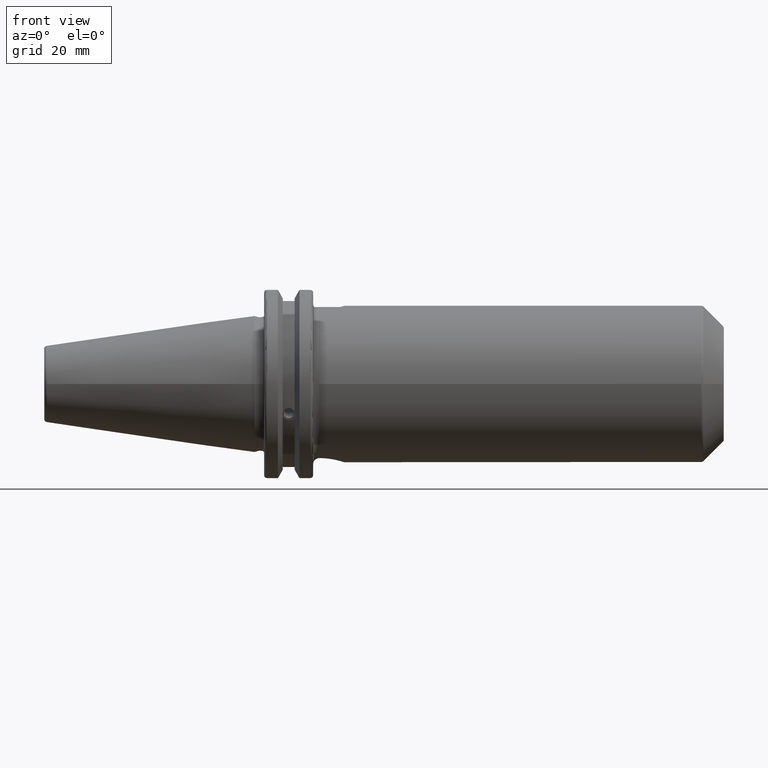
[diagram: clean part render]
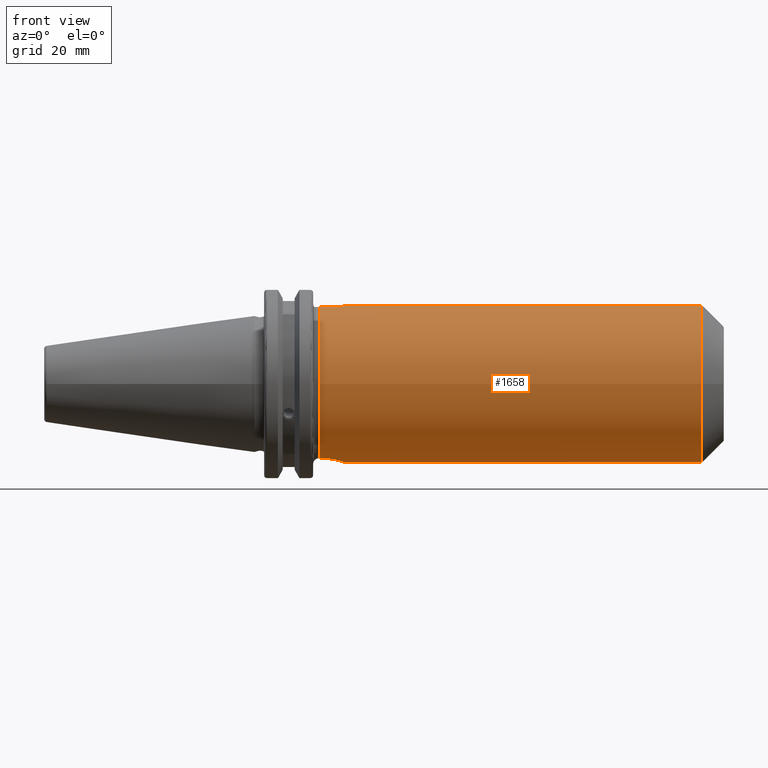
[diagram: same view with one face highlighted and labeled with its STEP entity id]
A machine part, front view. The second image highlights one B-rep face of the part: STEP entity #1658.
In plain terms, the highlighted cylindrical surface (bore or boss wall) has radius 25.4 mm, axis along (1, 0, 0).
Its self-contained STEP definition (entity closure, byte-faithful):
#45=FACE_BOUND('',#253,.T.);
#46=FACE_BOUND('',#254,.T.);
#119=CYLINDRICAL_SURFACE('',#1783,25.4);
#156=FACE_OUTER_BOUND('',#252,.T.);
#252=EDGE_LOOP('',(#1158,#1159,#1160,#1161,#1162,#1163,#1164,#1165,#1166,
#1167,#1168,#1169,#1170));
#253=EDGE_LOOP('',(#1171,#1172));
#254=EDGE_LOOP('',(#1173,#1174));
#360=CIRCLE('',#1784,25.4);
#361=CIRCLE('',#1785,25.4);
#362=CIRCLE('',#1786,25.4);
#363=CIRCLE('',#1787,25.4);
#364=CIRCLE('',#1788,25.4);
#452=LINE('',#2678,#546);
#453=LINE('',#2681,#547);
#454=LINE('',#2683,#548);
#455=LINE('',#2687,#549);
#456=LINE('',#2700,#550);
#546=VECTOR('',#2016,25.4);
#547=VECTOR('',#2019,10.);
#548=VECTOR('',#2020,10.);
#549=VECTOR('',#2023,10.);
#550=VECTOR('',#2024,10.);
#622=B_SPLINE_CURVE_WITH_KNOTS('',3,(#2442,#2443,#2444,#2445,#2446,#2447,
#2448,#2449,#2450,#2451,#2452,#2453,#2454,#2455,#2456,#2457,#2458,#2459),
 .UNSPECIFIED.,.F.,.F.,(4,2,2,2,2,2,2,2,4),(1.52618984305702,1.91611919862411,
2.3060485541912,2.67921412015262,3.05237968611404,3.42554525207547,3.79871081803689,
4.18864017360398,4.57856952917107),.UNSPECIFIED.);
#623=B_SPLINE_CURVE_WITH_KNOTS('',3,(#2463,#2464,#2465,#2466,#2467,#2468,
#2469,#2470,#2471,#2472,#2473,#2474,#2475,#2476,#2477,#2478,#2479,#2480,
#2481),.UNSPECIFIED.,.F.,.F.,(4,2,2,2,3,2,2,2,4),(4.57856952917107,4.96849888473815,
5.35842824030524,5.73159380626666,6.10475937222809,6.47792493818951,6.85109050415093,
7.24101985971802,7.63094921528511),.UNSPECIFIED.);
#626=B_SPLINE_CURVE_WITH_KNOTS('',3,(#2525,#2526,#2527,#2528,#2529,#2530,
#2531,#2532,#2533,#2534,#2535,#2536,#2537,#2538,#2539,#2540,#2541,#2542),
 .UNSPECIFIED.,.F.,.F.,(4,2,2,2,2,2,2,2,4),(1.52618984305702,1.91611919862411,
2.3060485541912,2.67921412015262,3.05237968611404,3.42554525207547,3.79871081803689,
4.18864017360398,4.57856952917107),.UNSPECIFIED.);
#627=B_SPLINE_CURVE_WITH_KNOTS('',3,(#2546,#2547,#2548,#2549,#2550,#2551,
#2552,#2553,#2554,#2555,#2556,#2557,#2558,#2559,#2560,#2561,#2562,#2563,
#2564),.UNSPECIFIED.,.F.,.F.,(4,2,2,2,3,2,2,2,4),(4.57856952917107,4.96849888473815,
5.35842824030524,5.73159380626666,6.10475937222809,6.47792493818951,6.85109050415093,
7.24101985971802,7.63094921528511),.UNSPECIFIED.);
#631=B_SPLINE_CURVE_WITH_KNOTS('',3,(#2613,#2614,#2615,#2616,#2617,#2618,
#2619,#2620,#2621,#2622,#2623,#2624,#2625,#2626,#2627,#2628,#2629,#2630),
 .UNSPECIFIED.,.F.,.F.,(4,2,2,2,2,2,2,2,4),(-2.48737209959745,-2.17638789866585,
-1.86540369773425,-1.55454487376649,-1.24368604979872,-0.932827225830959,
-0.621968401863195,-0.310984200931598,0.),.UNSPECIFIED.);
#632=B_SPLINE_CURVE_WITH_KNOTS('',3,(#2689,#2690,#2691,#2692,#2693,#2694,
#2695,#2696,#2697,#2698),.UNSPECIFIED.,.F.,.F.,(4,2,2,2,4),(3.27471279856147,
3.4201993254284,3.73105814939617,4.04191697336393,4.18740350023087),
 .UNSPECIFIED.);
#675=VERTEX_POINT('',#2440);
#676=VERTEX_POINT('',#2441);
#680=VERTEX_POINT('',#2523);
#681=VERTEX_POINT('',#2524);
#685=VERTEX_POINT('',#2606);
#687=VERTEX_POINT('',#2612);
#706=VERTEX_POINT('',#2674);
#707=VERTEX_POINT('',#2675);
#708=VERTEX_POINT('',#2677);
#709=VERTEX_POINT('',#2679);
#710=VERTEX_POINT('',#2682);
#711=VERTEX_POINT('',#2684);
#712=VERTEX_POINT('',#2686);
#713=VERTEX_POINT('',#2688);
#714=VERTEX_POINT('',#2699);
#851=EDGE_CURVE('',#675,#676,#622,.T.);
#854=EDGE_CURVE('',#676,#675,#623,.T.);
#858=EDGE_CURVE('',#680,#681,#626,.T.);
#861=EDGE_CURVE('',#681,#680,#627,.T.);
#866=EDGE_CURVE('',#687,#685,#631,.T.);
#888=EDGE_CURVE('',#706,#707,#360,.T.);
#889=EDGE_CURVE('',#706,#708,#452,.T.);
#890=EDGE_CURVE('',#709,#708,#361,.T.);
#891=EDGE_CURVE('',#709,#687,#453,.T.);
#892=EDGE_CURVE('',#685,#710,#454,.T.);
#893=EDGE_CURVE('',#711,#710,#362,.T.);
#894=EDGE_CURVE('',#711,#712,#455,.T.);
#895=EDGE_CURVE('',#712,#713,#632,.T.);
#896=EDGE_CURVE('',#713,#714,#456,.T.);
#897=EDGE_CURVE('',#708,#714,#363,.T.);
#898=EDGE_CURVE('',#707,#706,#364,.T.);
#1158=ORIENTED_EDGE('',*,*,#888,.F.);
#1159=ORIENTED_EDGE('',*,*,#889,.T.);
#1160=ORIENTED_EDGE('',*,*,#890,.F.);
#1161=ORIENTED_EDGE('',*,*,#891,.T.);
#1162=ORIENTED_EDGE('',*,*,#866,.T.);
#1163=ORIENTED_EDGE('',*,*,#892,.T.);
#1164=ORIENTED_EDGE('',*,*,#893,.F.);
#1165=ORIENTED_EDGE('',*,*,#894,.T.);
#1166=ORIENTED_EDGE('',*,*,#895,.T.);
#1167=ORIENTED_EDGE('',*,*,#896,.T.);
#1168=ORIENTED_EDGE('',*,*,#897,.F.);
#1169=ORIENTED_EDGE('',*,*,#889,.F.);
#1170=ORIENTED_EDGE('',*,*,#898,.F.);
#1171=ORIENTED_EDGE('',*,*,#851,.T.);
#1172=ORIENTED_EDGE('',*,*,#854,.T.);
#1173=ORIENTED_EDGE('',*,*,#858,.T.);
#1174=ORIENTED_EDGE('',*,*,#861,.T.);
#1658=ADVANCED_FACE('',(#156,#45,#46),#119,.T.);
#1783=AXIS2_PLACEMENT_3D('',#2673,#2012,#2013);
#1784=AXIS2_PLACEMENT_3D('',#2676,#2014,#2015);
#1785=AXIS2_PLACEMENT_3D('',#2680,#2017,#2018);
#1786=AXIS2_PLACEMENT_3D('',#2685,#2021,#2022);
#1787=AXIS2_PLACEMENT_3D('',#2701,#2025,#2026);
#1788=AXIS2_PLACEMENT_3D('',#2702,#2027,#2028);
#2012=DIRECTION('center_axis',(1.,0.,0.));
#2013=DIRECTION('ref_axis',(0.,1.,0.));
#2014=DIRECTION('center_axis',(1.,0.,0.));
#2015=DIRECTION('ref_axis',(0.,-1.,1.83697019872103E-16));
#2016=DIRECTION('',(-1.,0.,0.));
#2017=DIRECTION('center_axis',(-1.,0.,0.));
#2018=DIRECTION('ref_axis',(0.,-0.99716621915397,0.0752298569596953));
#2019=DIRECTION('',(-1.,0.,0.));
#2020=DIRECTION('',(1.,0.,0.));
#2021=DIRECTION('center_axis',(-1.,0.,0.));
#2022=DIRECTION('ref_axis',(0.,0.99716621915397,0.0752298569596956));
#2023=DIRECTION('',(1.,0.,0.));
#2024=DIRECTION('',(-1.,0.,0.));
#2025=DIRECTION('center_axis',(-1.,0.,0.));
#2026=DIRECTION('ref_axis',(0.,-0.99716621915397,0.0752298569596953));
#2027=DIRECTION('center_axis',(1.,0.,0.));
#2028=DIRECTION('ref_axis',(0.,-1.,1.83697019872103E-16));
#2440=CARTESIAN_POINT('',(119.28,25.4,0.));
#2441=CARTESIAN_POINT('',(97.52,25.4,0.));
#2442=CARTESIAN_POINT('Ctrl Pts',(119.28,25.4,2.77555756156289E-16));
#2443=CARTESIAN_POINT('Ctrl Pts',(119.28,25.4,1.29976451855696));
#2444=CARTESIAN_POINT('Ctrl Pts',(118.928267503823,25.2909888754548,2.63660272249563));
#2445=CARTESIAN_POINT('Ctrl Pts',(117.631344763833,24.9321025661008,4.99760228216975));
#2446=CARTESIAN_POINT('Ctrl Pts',(116.688738901845,24.6884148360312,6.0241184495101));
#2447=CARTESIAN_POINT('Ctrl Pts',(114.691480410846,24.2667433726517,7.5417830003607));
#2448=CARTESIAN_POINT('Ctrl Pts',(113.506856993419,24.0569516775166,8.16147060057176));
#2449=CARTESIAN_POINT('Ctrl Pts',(110.98331714326,23.7655856000898,8.97460037069445));
#2450=CARTESIAN_POINT('Ctrl Pts',(109.643885219871,23.6877935219554,9.16779352195541));
#2451=CARTESIAN_POINT('Ctrl Pts',(107.156114780129,23.6877935219554,9.16779352195541));
#2452=CARTESIAN_POINT('Ctrl Pts',(105.81668285674,23.7655856000898,8.97460037069445));
#2453=CARTESIAN_POINT('Ctrl Pts',(103.293143006581,24.0569516775166,8.16147060057176));
#2454=CARTESIAN_POINT('Ctrl Pts',(102.108519589154,24.2667433726517,7.5417830003607));
#2455=CARTESIAN_POINT('Ctrl Pts',(100.111261098155,24.6884148360312,6.0241184495101));
#2456=CARTESIAN_POINT('Ctrl Pts',(99.1686552361673,24.9321025661008,4.99760228216976));
#2457=CARTESIAN_POINT('Ctrl Pts',(97.8717324961774,25.2909888754548,2.63660272249564));
#2458=CARTESIAN_POINT('Ctrl Pts',(97.52,25.4,1.29976451855696));
#2459=CARTESIAN_POINT('Ctrl Pts',(97.52,25.4,1.11022302462516E-15));
#2463=CARTESIAN_POINT('Ctrl Pts',(97.52,25.4,6.10622663543836E-15));
#2464=CARTESIAN_POINT('Ctrl Pts',(97.52,25.4,-1.29976451855695));
#2465=CARTESIAN_POINT('Ctrl Pts',(97.8717324961774,25.2909888754548,-2.63660272249564));
#2466=CARTESIAN_POINT('Ctrl Pts',(99.1686552361673,24.9321025661008,-4.99760228216975));
#2467=CARTESIAN_POINT('Ctrl Pts',(100.111261098155,24.6884148360312,-6.0241184495101));
#2468=CARTESIAN_POINT('Ctrl Pts',(102.108519589154,24.2667433726517,-7.5417830003607));
#2469=CARTESIAN_POINT('Ctrl Pts',(103.293143006581,24.0569516775166,-8.16147060057177));
#2470=CARTESIAN_POINT('Ctrl Pts',(105.81668285674,23.7655856000898,-8.97460037069445));
#2471=CARTESIAN_POINT('Ctrl Pts',(107.156114780129,23.6877935219554,-9.16779352195541));
#2472=CARTESIAN_POINT('Ctrl Pts',(108.4,23.6877935219554,-9.16779352195541));
#2473=CARTESIAN_POINT('Ctrl Pts',(109.643885219871,23.6877935219554,-9.16779352195541));
#2474=CARTESIAN_POINT('Ctrl Pts',(110.98331714326,23.7655856000898,-8.97460037069445));
#2475=CARTESIAN_POINT('Ctrl Pts',(113.506856993419,24.0569516775166,-8.16147060057176));
#2476=CARTESIAN_POINT('Ctrl Pts',(114.691480410846,24.2667433726517,-7.5417830003607));
#2477=CARTESIAN_POINT('Ctrl Pts',(116.688738901845,24.6884148360312,-6.0241184495101));
#2478=CARTESIAN_POINT('Ctrl Pts',(117.631344763833,24.9321025661008,-4.99760228216977));
#2479=CARTESIAN_POINT('Ctrl Pts',(118.928267503823,25.2909888754548,-2.63660272249564));
#2480=CARTESIAN_POINT('Ctrl Pts',(119.28,25.4,-1.29976451855697));
#2481=CARTESIAN_POINT('Ctrl Pts',(119.28,25.4,-4.30211422042248E-15));
#2523=CARTESIAN_POINT('',(142.18,25.4,0.));
#2524=CARTESIAN_POINT('',(120.42,25.4,0.));
#2525=CARTESIAN_POINT('Ctrl Pts',(142.18,25.4,-5.55111512312578E-16));
#2526=CARTESIAN_POINT('Ctrl Pts',(142.18,25.4,1.29976451855696));
#2527=CARTESIAN_POINT('Ctrl Pts',(141.828267503823,25.2909888754548,2.63660272249563));
#2528=CARTESIAN_POINT('Ctrl Pts',(140.531344763833,24.9321025661008,4.99760228216975));
#2529=CARTESIAN_POINT('Ctrl Pts',(139.588738901845,24.6884148360312,6.0241184495101));
#2530=CARTESIAN_POINT('Ctrl Pts',(137.591480410846,24.2667433726517,7.5417830003607));
#2531=CARTESIAN_POINT('Ctrl Pts',(136.406856993419,24.0569516775166,8.16147060057177));
#2532=CARTESIAN_POINT('Ctrl Pts',(133.88331714326,23.7655856000898,8.97460037069445));
#2533=CARTESIAN_POINT('Ctrl Pts',(132.543885219871,23.6877935219554,9.16779352195541));
#2534=CARTESIAN_POINT('Ctrl Pts',(130.056114780129,23.6877935219554,9.16779352195541));
#2535=CARTESIAN_POINT('Ctrl Pts',(128.71668285674,23.7655856000898,8.97460037069445));
#2536=CARTESIAN_POINT('Ctrl Pts',(126.193143006581,24.0569516775166,8.16147060057176));
#2537=CARTESIAN_POINT('Ctrl Pts',(125.008519589154,24.2667433726517,7.5417830003607));
#2538=CARTESIAN_POINT('Ctrl Pts',(123.011261098155,24.6884148360312,6.0241184495101));
#2539=CARTESIAN_POINT('Ctrl Pts',(122.068655236167,24.9321025661008,4.99760228216976));
#2540=CARTESIAN_POINT('Ctrl Pts',(120.771732496177,25.2909888754548,2.63660272249564));
#2541=CARTESIAN_POINT('Ctrl Pts',(120.42,25.4,1.29976451855696));
#2542=CARTESIAN_POINT('Ctrl Pts',(120.42,25.4,5.55111512312578E-16));
#2546=CARTESIAN_POINT('Ctrl Pts',(120.42,25.4,6.10622663543836E-15));
#2547=CARTESIAN_POINT('Ctrl Pts',(120.42,25.4,-1.29976451855695));
#2548=CARTESIAN_POINT('Ctrl Pts',(120.771732496177,25.2909888754548,-2.63660272249564));
#2549=CARTESIAN_POINT('Ctrl Pts',(122.068655236167,24.9321025661008,-4.99760228216975));
#2550=CARTESIAN_POINT('Ctrl Pts',(123.011261098155,24.6884148360312,-6.0241184495101));
#2551=CARTESIAN_POINT('Ctrl Pts',(125.008519589154,24.2667433726517,-7.5417830003607));
#2552=CARTESIAN_POINT('Ctrl Pts',(126.193143006581,24.0569516775166,-8.16147060057176));
#2553=CARTESIAN_POINT('Ctrl Pts',(128.71668285674,23.7655856000898,-8.97460037069445));
#2554=CARTESIAN_POINT('Ctrl Pts',(130.056114780129,23.6877935219554,-9.16779352195541));
#2555=CARTESIAN_POINT('Ctrl Pts',(131.3,23.6877935219554,-9.16779352195541));
#2556=CARTESIAN_POINT('Ctrl Pts',(132.543885219871,23.6877935219554,-9.16779352195541));
#2557=CARTESIAN_POINT('Ctrl Pts',(133.88331714326,23.7655856000898,-8.97460037069445));
#2558=CARTESIAN_POINT('Ctrl Pts',(136.406856993419,24.0569516775166,-8.16147060057176));
#2559=CARTESIAN_POINT('Ctrl Pts',(137.591480410846,24.2667433726517,-7.5417830003607));
#2560=CARTESIAN_POINT('Ctrl Pts',(139.588738901845,24.6884148360312,-6.0241184495101));
#2561=CARTESIAN_POINT('Ctrl Pts',(140.531344763833,24.9321025661008,-4.99760228216977));
#2562=CARTESIAN_POINT('Ctrl Pts',(141.828267503823,25.2909888754548,-2.63660272249564));
#2563=CARTESIAN_POINT('Ctrl Pts',(142.18,25.4,-1.29976451855697));
#2564=CARTESIAN_POINT('Ctrl Pts',(142.18,25.4,-4.44089209850063E-15));
#2606=CARTESIAN_POINT('',(20.985,8.19000000000001,-24.0433753869959));
#2612=CARTESIAN_POINT('',(20.985,-8.19,-24.0433753869959));
#2613=CARTESIAN_POINT('Ctrl Pts',(20.985,-8.19,-24.0433753869959));
#2614=CARTESIAN_POINT('Ctrl Pts',(22.0216140031053,-8.19,-24.0433753869959));
#2615=CARTESIAN_POINT('Ctrl Pts',(23.121770488364,-7.98130864098303,-24.1174491340554));
#2616=CARTESIAN_POINT('Ctrl Pts',(25.1371322778886,-7.14331042848926,-24.3787970918481));
#2617=CARTESIAN_POINT('Ctrl Pts',(26.0530541302136,-6.51435494562205,-24.5616530738817));
#2618=CARTESIAN_POINT('Ctrl Pts',(27.4990633989703,-5.0683456768653,-24.9002620364281));
#2619=CARTESIAN_POINT('Ctrl Pts',(28.1282437836418,-4.15230690103237,-25.0788758294577));
#2620=CARTESIAN_POINT('Ctrl Pts',(28.9664091357828,-2.13651445649881,-25.3303567171013));
#2621=CARTESIAN_POINT('Ctrl Pts',(29.175,-1.03619607989255,-25.4));
#2622=CARTESIAN_POINT('Ctrl Pts',(29.175,1.03619607989255,-25.4));
#2623=CARTESIAN_POINT('Ctrl Pts',(28.9664091357828,2.13651445649881,-25.3303567171013));
#2624=CARTESIAN_POINT('Ctrl Pts',(28.1282437836418,4.15230690103237,-25.0788758294577));
#2625=CARTESIAN_POINT('Ctrl Pts',(27.4990633989703,5.0683456768653,-24.9002620364281));
#2626=CARTESIAN_POINT('Ctrl Pts',(26.0530541302136,6.51435494562205,-24.5616530738817));
#2627=CARTESIAN_POINT('Ctrl Pts',(25.1371322778886,7.14331042848926,-24.3787970918481));
#2628=CARTESIAN_POINT('Ctrl Pts',(23.121770488364,7.98130864098303,-24.1174491340554));
#2629=CARTESIAN_POINT('Ctrl Pts',(22.0216140031053,8.19,-24.0433753869959));
#2630=CARTESIAN_POINT('Ctrl Pts',(20.985,8.19,-24.0433753869959));
#2673=CARTESIAN_POINT('Origin',(82.275,0.,0.));
#2674=CARTESIAN_POINT('',(145.085786437627,-25.4,-3.11060286983428E-15));
#2675=CARTESIAN_POINT('',(145.085786437627,-3.11060286983428E-15,25.4));
#2676=CARTESIAN_POINT('Origin',(145.085786437627,0.,0.));
#2677=CARTESIAN_POINT('',(21.05,-25.4,-3.11060286983428E-15));
#2678=CARTESIAN_POINT('',(82.275,-25.4,-3.11060286983428E-15));
#2679=CARTESIAN_POINT('',(21.05,-8.19,-24.0433753869959));
#2680=CARTESIAN_POINT('Origin',(21.05,0.,0.));
#2681=CARTESIAN_POINT('',(82.275,-8.19,-24.0433753869959));
#2682=CARTESIAN_POINT('',(21.05,8.19,-24.0433753869959));
#2683=CARTESIAN_POINT('',(82.275,8.19000000000001,-24.0433753869959));
#2684=CARTESIAN_POINT('',(21.05,4.48998886412873,25.));
#2685=CARTESIAN_POINT('Origin',(21.05,0.,0.));
#2686=CARTESIAN_POINT('',(27.8345328307849,4.48998886412873,25.));
#2687=CARTESIAN_POINT('',(82.275,4.48998886412873,25.));
#2688=CARTESIAN_POINT('',(27.8345328307849,-4.48998886412873,25.));
#2689=CARTESIAN_POINT('Ctrl Pts',(27.8345328307849,4.48998886412873,25.));
#2690=CARTESIAN_POINT('Ctrl Pts',(28.1106234942598,4.06880918618945,25.0756436825498));
#2691=CARTESIAN_POINT('Ctrl Pts',(28.3511895695531,3.61612101643034,25.1457678860121));
#2692=CARTESIAN_POINT('Ctrl Pts',(28.9664091357828,2.13651445649881,25.3303567171013));
#2693=CARTESIAN_POINT('Ctrl Pts',(29.175,1.03619607989255,25.4));
#2694=CARTESIAN_POINT('Ctrl Pts',(29.175,-1.03619607989254,25.4));
#2695=CARTESIAN_POINT('Ctrl Pts',(28.9664091357828,-2.13651445649881,25.3303567171013));
#2696=CARTESIAN_POINT('Ctrl Pts',(28.3511895695531,-3.61612101643034,25.1457678860121));
#2697=CARTESIAN_POINT('Ctrl Pts',(28.1106234942598,-4.06880918618945,25.0756436825498));
#2698=CARTESIAN_POINT('Ctrl Pts',(27.8345328307849,-4.48998886412873,25.));
#2699=CARTESIAN_POINT('',(21.05,-4.48998886412873,25.));
#2700=CARTESIAN_POINT('',(82.275,-4.48998886412873,25.));
#2701=CARTESIAN_POINT('Origin',(21.05,0.,0.));
#2702=CARTESIAN_POINT('Origin',(145.085786437627,0.,0.));